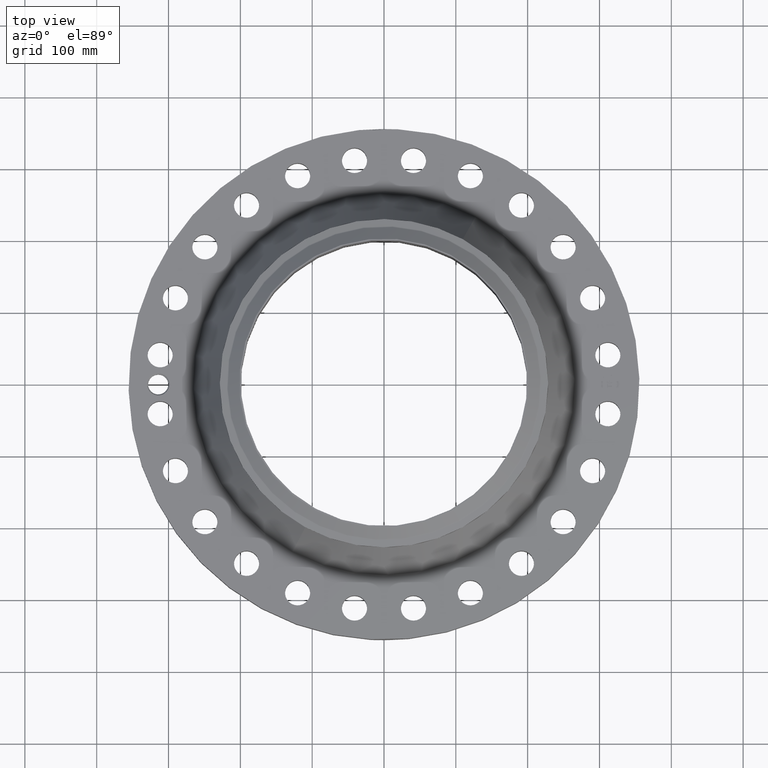
[diagram: clean part render]
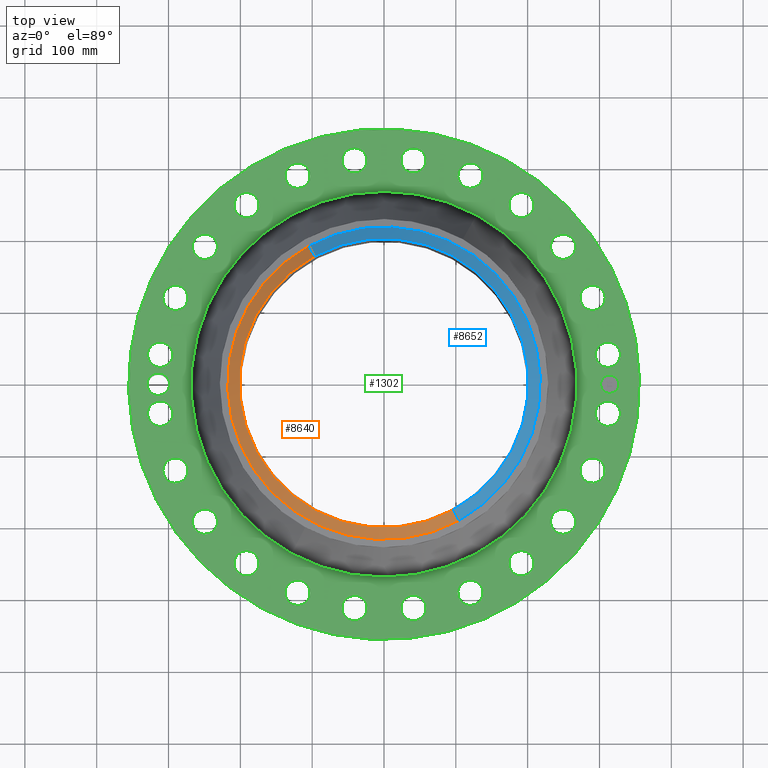
[diagram: same view with three faces highlighted in distinct colors, each labeled with its STEP entity id]
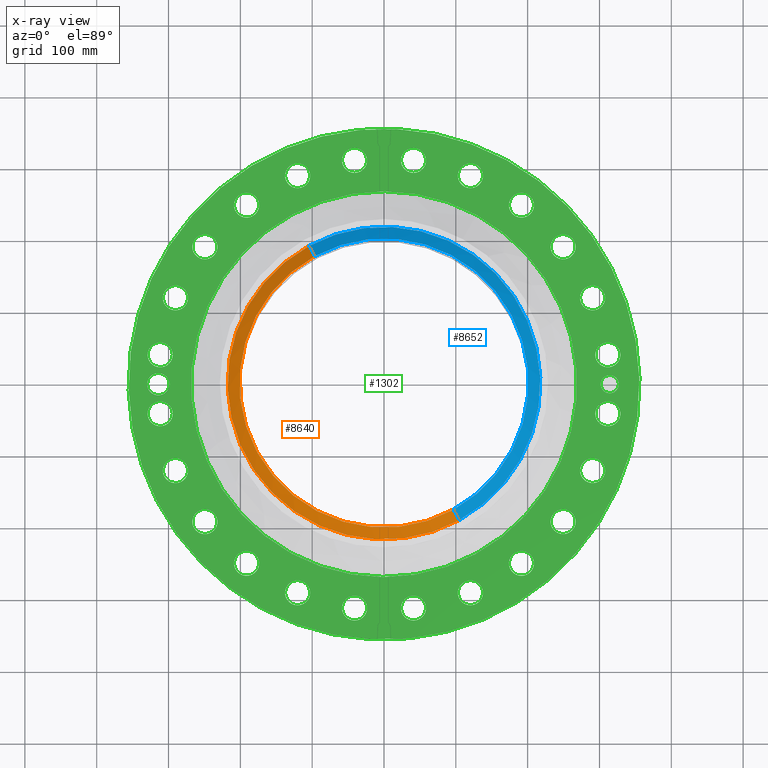
[diagram: x-ray of the same camera — body ghosted, the three highlighted faces saturated]
A machine part, top view with three faces highlighted in distinct colors.
The next image is the same camera in x-ray (body ghosted, the three faces saturated) — at least one of them is partly hidden behind the body in this view.
Their STEP definitions:

[orange] entity #8640 — the highlighted conical surface has half-angle 52.5 deg.
#5086=AXIS2_PLACEMENT_3D('Circle Axis2P3D',#5084,#5085,$) ;
#8613=AXIS2_PLACEMENT_3D('Cone Axis2P3D',#8610,#8611,#8612) ;
#8624=AXIS2_PLACEMENT_3D('Circle Axis2P3D',#8622,#8623,$) ;
#5079=CARTESIAN_POINT('Vertex',(3.79836396724,-6.95285860462,6.31000000003)) ;
#5081=CARTESIAN_POINT('Vertex',(-3.79836396724,6.95285860462,6.31000000003)) ;
#5084=CARTESIAN_POINT('Axis2P3D Location',(0.,0.,6.31000000003)) ;
#8610=CARTESIAN_POINT('Axis2P3D Location',(0.,0.,6.31000000003)) ;
#8615=CARTESIAN_POINT('Line Origine',(-3.95330526979,7.23647675652,6.06201437259)) ;
#8619=CARTESIAN_POINT('Vertex',(-4.10824657234,7.52009490843,5.81402874515)) ;
#8622=CARTESIAN_POINT('Axis2P3D Location',(0.,0.,5.81402874515)) ;
#8626=CARTESIAN_POINT('Vertex',(4.10824657234,-7.52009490843,5.81402874515)) ;
#8629=CARTESIAN_POINT('Line Origine',(3.95330526979,-7.23647675652,6.06201437259)) ;
#5085=DIRECTION('Axis2P3D Direction',(0.,0.,-0.0393700787402)) ;
#8611=DIRECTION('Axis2P3D Direction',(-0.,-0.,-0.0393700787402)) ;
#8612=DIRECTION('Axis2P3D XDirection',(-0.0188750212049,0.0345504945626,0.)) ;
#8616=DIRECTION('Vector Direction',(-0.014974561121,0.02741075027,-0.023966985394)) ;
#8623=DIRECTION('Axis2P3D Direction',(0.,0.,-0.0393700787402)) ;
#8630=DIRECTION('Vector Direction',(0.014974561121,-0.02741075027,-0.023966985394)) ;
#8617=VECTOR('Line Direction',#8616,0.0393700787402) ;
#8631=VECTOR('Line Direction',#8630,0.0393700787402) ;
#8635=ORIENTED_EDGE('',*,*,#5088,.F.) ;
#8636=ORIENTED_EDGE('',*,*,#8621,.T.) ;
#8637=ORIENTED_EDGE('',*,*,#8628,.T.) ;
#8638=ORIENTED_EDGE('',*,*,#8633,.F.) ;
#8640=ADVANCED_FACE('PartBody',(#8639),#8614,.T.) ;
#5087=CIRCLE('generated circle',#5086,7.92274015751) ;
#8625=CIRCLE('generated circle',#8624,8.56910248106) ;
#8614=CONICAL_SURFACE('Cone',#8613,7.92274015751,0.916297857297) ;
#5088=EDGE_CURVE('',#5082,#5080,#5087,.F.) ;
#8621=EDGE_CURVE('',#5082,#8620,#8618,.T.) ;
#8628=EDGE_CURVE('',#8620,#8627,#8625,.F.) ;
#8633=EDGE_CURVE('',#5080,#8627,#8632,.T.) ;
#8634=EDGE_LOOP('',(#8635,#8636,#8637,#8638)) ;
#8639=FACE_OUTER_BOUND('',#8634,.T.) ;
#8618=LINE('Line',#8615,#8617) ;
#8632=LINE('Line',#8629,#8631) ;
#5080=VERTEX_POINT('',#5079) ;
#5082=VERTEX_POINT('',#5081) ;
#8620=VERTEX_POINT('',#8619) ;
#8627=VERTEX_POINT('',#8626) ;

[blue] entity #8652 — the highlighted conical surface has half-angle 52.5 deg.
#5077=AXIS2_PLACEMENT_3D('Circle Axis2P3D',#5075,#5076,$) ;
#8613=AXIS2_PLACEMENT_3D('Cone Axis2P3D',#8610,#8611,#8612) ;
#8643=AXIS2_PLACEMENT_3D('Circle Axis2P3D',#8641,#8642,$) ;
#5075=CARTESIAN_POINT('Axis2P3D Location',(0.,0.,6.31000000003)) ;
#5079=CARTESIAN_POINT('Vertex',(3.79836396724,-6.95285860462,6.31000000003)) ;
#5081=CARTESIAN_POINT('Vertex',(-3.79836396724,6.95285860462,6.31000000003)) ;
#8610=CARTESIAN_POINT('Axis2P3D Location',(0.,0.,6.31000000003)) ;
#8615=CARTESIAN_POINT('Line Origine',(-3.95330526979,7.23647675652,6.06201437259)) ;
#8619=CARTESIAN_POINT('Vertex',(-4.10824657234,7.52009490843,5.81402874515)) ;
#8626=CARTESIAN_POINT('Vertex',(4.10824657234,-7.52009490843,5.81402874515)) ;
#8629=CARTESIAN_POINT('Line Origine',(3.95330526979,-7.23647675652,6.06201437259)) ;
#8641=CARTESIAN_POINT('Axis2P3D Location',(0.,0.,5.81402874515)) ;
#5076=DIRECTION('Axis2P3D Direction',(0.,0.,-0.0393700787402)) ;
#8611=DIRECTION('Axis2P3D Direction',(-0.,-0.,-0.0393700787402)) ;
#8612=DIRECTION('Axis2P3D XDirection',(-0.0188750212049,0.0345504945626,0.)) ;
#8616=DIRECTION('Vector Direction',(-0.014974561121,0.02741075027,-0.023966985394)) ;
#8630=DIRECTION('Vector Direction',(0.014974561121,-0.02741075027,-0.023966985394)) ;
#8642=DIRECTION('Axis2P3D Direction',(0.,0.,-0.0393700787402)) ;
#8617=VECTOR('Line Direction',#8616,0.0393700787402) ;
#8631=VECTOR('Line Direction',#8630,0.0393700787402) ;
#8647=ORIENTED_EDGE('',*,*,#5083,.F.) ;
#8648=ORIENTED_EDGE('',*,*,#8633,.T.) ;
#8649=ORIENTED_EDGE('',*,*,#8645,.T.) ;
#8650=ORIENTED_EDGE('',*,*,#8621,.F.) ;
#8652=ADVANCED_FACE('PartBody',(#8651),#8614,.T.) ;
#5078=CIRCLE('generated circle',#5077,7.92274015751) ;
#8644=CIRCLE('generated circle',#8643,8.56910248106) ;
#8614=CONICAL_SURFACE('Cone',#8613,7.92274015751,0.916297857297) ;
#5083=EDGE_CURVE('',#5080,#5082,#5078,.F.) ;
#8621=EDGE_CURVE('',#5082,#8620,#8618,.T.) ;
#8633=EDGE_CURVE('',#5080,#8627,#8632,.T.) ;
#8645=EDGE_CURVE('',#8627,#8620,#8644,.F.) ;
#8646=EDGE_LOOP('',(#8647,#8648,#8649,#8650)) ;
#8651=FACE_OUTER_BOUND('',#8646,.T.) ;
#8618=LINE('Line',#8615,#8617) ;
#8632=LINE('Line',#8629,#8631) ;
#5080=VERTEX_POINT('',#5079) ;
#5082=VERTEX_POINT('',#5081) ;
#8620=VERTEX_POINT('',#8619) ;
#8627=VERTEX_POINT('',#8626) ;

[green] entity #1302 — the highlighted planar face has unit normal (0, 0, -1).
#58=AXIS2_PLACEMENT_3D('Circle Axis2P3D',#56,#57,$) ;
#677=AXIS2_PLACEMENT_3D('Circle Axis2P3D',#675,#676,$) ;
#777=AXIS2_PLACEMENT_3D('Plane Axis2P3D',#774,#775,#776) ;
#810=AXIS2_PLACEMENT_3D('Circle Axis2P3D',#808,#809,$) ;
#817=AXIS2_PLACEMENT_3D('Circle Axis2P3D',#815,#816,$) ;
#824=AXIS2_PLACEMENT_3D('Circle Axis2P3D',#822,#823,$) ;
#836=AXIS2_PLACEMENT_3D('Circle Axis2P3D',#834,#835,$) ;
#845=AXIS2_PLACEMENT_3D('Circle Axis2P3D',#843,#844,$) ;
#854=AXIS2_PLACEMENT_3D('Circle Axis2P3D',#852,#853,$) ;
#863=AXIS2_PLACEMENT_3D('Circle Axis2P3D',#861,#862,$) ;
#872=AXIS2_PLACEMENT_3D('Circle Axis2P3D',#870,#871,$) ;
#881=AXIS2_PLACEMENT_3D('Circle Axis2P3D',#879,#880,$) ;
#890=AXIS2_PLACEMENT_3D('Circle Axis2P3D',#888,#889,$) ;
#899=AXIS2_PLACEMENT_3D('Circle Axis2P3D',#897,#898,$) ;
#908=AXIS2_PLACEMENT_3D('Circle Axis2P3D',#906,#907,$) ;
#917=AXIS2_PLACEMENT_3D('Circle Axis2P3D',#915,#916,$) ;
#926=AXIS2_PLACEMENT_3D('Circle Axis2P3D',#924,#925,$) ;
#935=AXIS2_PLACEMENT_3D('Circle Axis2P3D',#933,#934,$) ;
#944=AXIS2_PLACEMENT_3D('Circle Axis2P3D',#942,#943,$) ;
#953=AXIS2_PLACEMENT_3D('Circle Axis2P3D',#951,#952,$) ;
#962=AXIS2_PLACEMENT_3D('Circle Axis2P3D',#960,#961,$) ;
#971=AXIS2_PLACEMENT_3D('Circle Axis2P3D',#969,#970,$) ;
#980=AXIS2_PLACEMENT_3D('Circle Axis2P3D',#978,#979,$) ;
#989=AXIS2_PLACEMENT_3D('Circle Axis2P3D',#987,#988,$) ;
#998=AXIS2_PLACEMENT_3D('Circle Axis2P3D',#996,#997,$) ;
#1007=AXIS2_PLACEMENT_3D('Circle Axis2P3D',#1005,#1006,$) ;
#1016=AXIS2_PLACEMENT_3D('Circle Axis2P3D',#1014,#1015,$) ;
#1025=AXIS2_PLACEMENT_3D('Circle Axis2P3D',#1023,#1024,$) ;
#1034=AXIS2_PLACEMENT_3D('Circle Axis2P3D',#1032,#1033,$) ;
#1043=AXIS2_PLACEMENT_3D('Circle Axis2P3D',#1041,#1042,$) ;
#1052=AXIS2_PLACEMENT_3D('Circle Axis2P3D',#1050,#1051,$) ;
#1061=AXIS2_PLACEMENT_3D('Circle Axis2P3D',#1059,#1060,$) ;
#1070=AXIS2_PLACEMENT_3D('Circle Axis2P3D',#1068,#1069,$) ;
#1079=AXIS2_PLACEMENT_3D('Circle Axis2P3D',#1077,#1078,$) ;
#1088=AXIS2_PLACEMENT_3D('Circle Axis2P3D',#1086,#1087,$) ;
#1097=AXIS2_PLACEMENT_3D('Circle Axis2P3D',#1095,#1096,$) ;
#1106=AXIS2_PLACEMENT_3D('Circle Axis2P3D',#1104,#1105,$) ;
#1115=AXIS2_PLACEMENT_3D('Circle Axis2P3D',#1113,#1114,$) ;
#1124=AXIS2_PLACEMENT_3D('Circle Axis2P3D',#1122,#1123,$) ;
#1133=AXIS2_PLACEMENT_3D('Circle Axis2P3D',#1131,#1132,$) ;
#1142=AXIS2_PLACEMENT_3D('Circle Axis2P3D',#1140,#1141,$) ;
#1151=AXIS2_PLACEMENT_3D('Circle Axis2P3D',#1149,#1150,$) ;
#1160=AXIS2_PLACEMENT_3D('Circle Axis2P3D',#1158,#1159,$) ;
#1169=AXIS2_PLACEMENT_3D('Circle Axis2P3D',#1167,#1168,$) ;
#1178=AXIS2_PLACEMENT_3D('Circle Axis2P3D',#1176,#1177,$) ;
#1187=AXIS2_PLACEMENT_3D('Circle Axis2P3D',#1185,#1186,$) ;
#1196=AXIS2_PLACEMENT_3D('Circle Axis2P3D',#1194,#1195,$) ;
#1205=AXIS2_PLACEMENT_3D('Circle Axis2P3D',#1203,#1204,$) ;
#1214=AXIS2_PLACEMENT_3D('Circle Axis2P3D',#1212,#1213,$) ;
#1223=AXIS2_PLACEMENT_3D('Circle Axis2P3D',#1221,#1222,$) ;
#1232=AXIS2_PLACEMENT_3D('Circle Axis2P3D',#1230,#1231,$) ;
#1241=AXIS2_PLACEMENT_3D('Circle Axis2P3D',#1239,#1240,$) ;
#1250=AXIS2_PLACEMENT_3D('Circle Axis2P3D',#1248,#1249,$) ;
#1259=AXIS2_PLACEMENT_3D('Circle Axis2P3D',#1257,#1258,$) ;
#1268=AXIS2_PLACEMENT_3D('Circle Axis2P3D',#1266,#1267,$) ;
#1277=AXIS2_PLACEMENT_3D('Circle Axis2P3D',#1275,#1276,$) ;
#1286=AXIS2_PLACEMENT_3D('Circle Axis2P3D',#1284,#1285,$) ;
#1295=AXIS2_PLACEMENT_3D('Circle Axis2P3D',#1293,#1294,$) ;
#53=CARTESIAN_POINT('Vertex',(-6.71195754049,-12.2861558665,2.44000000001)) ;
#56=CARTESIAN_POINT('Axis2P3D Location',(0.,0.,2.44000000001)) ;
#60=CARTESIAN_POINT('Vertex',(6.71195754049,12.2861558665,2.44000000001)) ;
#675=CARTESIAN_POINT('Axis2P3D Location',(0.,0.,2.44000000001)) ;
#774=CARTESIAN_POINT('Axis2P3D Location',(0.,14.0000000001,2.44000000001)) ;
#784=CARTESIAN_POINT('Control Point',(-11.75,2.23792987641E-015,2.44000000001)) ;
#785=CARTESIAN_POINT('Control Point',(-11.7520534045,0.0564977761562,2.44000000001)) ;
#786=CARTESIAN_POINT('Control Point',(-11.7604952312,0.112654225136,2.44000000001)) ;
#787=CARTESIAN_POINT('Control Point',(-11.7752771597,0.167499218118,2.44000000001)) ;
#788=CARTESIAN_POINT('Control Point',(-11.7961201002,0.220072139292,2.44000000001)) ;
#789=CARTESIAN_POINT('Control Point',(-11.822551499,0.269526343495,2.44000000001)) ;
#790=CARTESIAN_POINT('Vertex',(-11.75,2.23792987641E-015,2.44000000001)) ;
#792=CARTESIAN_POINT('Vertex',(-11.822551499,0.269526343495,2.44000000001)) ;
#796=CARTESIAN_POINT('Control Point',(-11.75,0.,2.44000000001)) ;
#797=CARTESIAN_POINT('Control Point',(-11.7518633164,-0.0512676551522,2.44000000001)) ;
#798=CARTESIAN_POINT('Control Point',(-11.7589870116,-0.102254253049,2.44000000001)) ;
#799=CARTESIAN_POINT('Control Point',(-11.7713262717,-0.152216948437,2.44000000001)) ;
#800=CARTESIAN_POINT('Control Point',(-11.7904956836,-0.205462779156,2.44000000001)) ;
#801=CARTESIAN_POINT('Control Point',(-11.8153820538,-0.255801522731,2.44000000001)) ;
#802=CARTESIAN_POINT('Control Point',(-11.817780944,-0.260525033871,2.44000000001)) ;
#803=CARTESIAN_POINT('Control Point',(-11.820229979,-0.265221215847,2.44000000001)) ;
#804=CARTESIAN_POINT('Control Point',(-11.8227287537,-0.269889359894,2.44000000001)) ;
#805=CARTESIAN_POINT('Vertex',(-11.8227287537,-0.269889359894,2.44000000001)) ;
#808=CARTESIAN_POINT('Axis2P3D Location',(-12.375,1.1189649382E-014,2.44000000001)) ;
#812=CARTESIAN_POINT('Vertex',(-11.8355587751,-0.294698084326,2.44000000001)) ;
#815=CARTESIAN_POINT('Axis2P3D Location',(-12.375,1.1189649382E-014,2.44000000001)) ;
#819=CARTESIAN_POINT('Vertex',(-12.914441225,0.294698084326,2.44000000001)) ;
#822=CARTESIAN_POINT('Axis2P3D Location',(-12.375,1.1189649382E-014,2.44000000001)) ;
#834=CARTESIAN_POINT('Axis2P3D Location',(12.2691301595,-1.61526162873,2.44000000001)) ;
#838=CARTESIAN_POINT('Vertex',(11.6635981918,-1.28445800709,2.44000000001)) ;
#840=CARTESIAN_POINT('Vertex',(12.8746621273,-1.94606525037,2.44000000001)) ;
#843=CARTESIAN_POINT('Axis2P3D Location',(12.2691301595,-1.61526162873,2.44000000001)) ;
#852=CARTESIAN_POINT('Axis2P3D Location',(0.,0.,2.44000000001)) ;
#856=CARTESIAN_POINT('Vertex',(-5.0697774453,-9.28016536543,2.44000000001)) ;
#858=CARTESIAN_POINT('Vertex',(5.0697774453,9.28016536543,2.44000000001)) ;
#861=CARTESIAN_POINT('Axis2P3D Location',(0.,0.,2.44000000001)) ;
#870=CARTESIAN_POINT('Axis2P3D Location',(11.4330092149,-4.73570747554,2.44000000001)) ;
#874=CARTESIAN_POINT('Vertex',(11.9322899037,-5.21196244277,2.44000000001)) ;
#876=CARTESIAN_POINT('Vertex',(10.9337285261,-4.25945250831,2.44000000001)) ;
#879=CARTESIAN_POINT('Axis2P3D Location',(11.4330092149,-4.73570747554,2.44000000001)) ;
#888=CARTESIAN_POINT('Axis2P3D Location',(9.81774758614,-7.53342268401,2.44000000001)) ;
#892=CARTESIAN_POINT('Vertex',(10.1767518422,-8.12267300787,2.44000000001)) ;
#894=CARTESIAN_POINT('Vertex',(9.45874333012,-6.94417236016,2.44000000001)) ;
#897=CARTESIAN_POINT('Axis2P3D Location',(9.81774758614,-7.53342268401,2.44000000001)) ;
#906=CARTESIAN_POINT('Axis2P3D Location',(7.53342268401,-9.81774758614,2.44000000001)) ;
#910=CARTESIAN_POINT('Vertex',(7.7276849605,-10.4798368308,2.44000000001)) ;
#912=CARTESIAN_POINT('Vertex',(7.33916040752,-9.15565834145,2.44000000001)) ;
#915=CARTESIAN_POINT('Axis2P3D Location',(7.53342268401,-9.81774758614,2.44000000001)) ;
#924=CARTESIAN_POINT('Axis2P3D Location',(4.73570747554,-11.4330092149,2.44000000001)) ;
#928=CARTESIAN_POINT('Vertex',(4.75198911939,-12.1228170925,2.44000000001)) ;
#930=CARTESIAN_POINT('Vertex',(4.71942583169,-10.7432013372,2.44000000001)) ;
#933=CARTESIAN_POINT('Axis2P3D Location',(4.73570747554,-11.4330092149,2.44000000001)) ;
#942=CARTESIAN_POINT('Axis2P3D Location',(1.61526162873,-12.2691301595,2.44000000001)) ;
#946=CARTESIAN_POINT('Vertex',(1.45245307282,-12.9396474033,2.44000000001)) ;
#948=CARTESIAN_POINT('Vertex',(1.77807018464,-11.5986129158,2.44000000001)) ;
#951=CARTESIAN_POINT('Axis2P3D Location',(1.61526162873,-12.2691301595,2.44000000001)) ;
#960=CARTESIAN_POINT('Axis2P3D Location',(-1.61526162873,-12.2691301595,2.44000000001)) ;
#964=CARTESIAN_POINT('Vertex',(-1.94606525037,-12.8746621273,2.44000000001)) ;
#966=CARTESIAN_POINT('Vertex',(-1.28445800709,-11.6635981918,2.44000000001)) ;
#969=CARTESIAN_POINT('Axis2P3D Location',(-1.61526162873,-12.2691301595,2.44000000001)) ;
#978=CARTESIAN_POINT('Axis2P3D Location',(-4.73570747554,-11.4330092149,2.44000000001)) ;
#982=CARTESIAN_POINT('Vertex',(-5.21196244277,-11.9322899037,2.44000000001)) ;
#984=CARTESIAN_POINT('Vertex',(-4.25945250831,-10.9337285261,2.44000000001)) ;
#987=CARTESIAN_POINT('Axis2P3D Location',(-4.73570747554,-11.4330092149,2.44000000001)) ;
#996=CARTESIAN_POINT('Axis2P3D Location',(-7.53342268401,-9.81774758614,2.44000000001)) ;
#1000=CARTESIAN_POINT('Vertex',(-8.12267300787,-10.1767518422,2.44000000001)) ;
#1002=CARTESIAN_POINT('Vertex',(-6.94417236016,-9.45874333012,2.44000000001)) ;
#1005=CARTESIAN_POINT('Axis2P3D Location',(-7.53342268401,-9.81774758614,2.44000000001)) ;
#1014=CARTESIAN_POINT('Axis2P3D Location',(-9.81774758614,-7.53342268401,2.44000000001)) ;
#1018=CARTESIAN_POINT('Vertex',(-10.4798368308,-7.7276849605,2.44000000001)) ;
#1020=CARTESIAN_POINT('Vertex',(-9.15565834145,-7.33916040752,2.44000000001)) ;
#1023=CARTESIAN_POINT('Axis2P3D Location',(-9.81774758614,-7.53342268401,2.44000000001)) ;
#1032=CARTESIAN_POINT('Axis2P3D Location',(-11.4330092149,-4.73570747554,2.44000000001)) ;
#1036=CARTESIAN_POINT('Vertex',(-12.1228170925,-4.75198911939,2.44000000001)) ;
#1038=CARTESIAN_POINT('Vertex',(-10.7432013372,-4.71942583169,2.44000000001)) ;
#1041=CARTESIAN_POINT('Axis2P3D Location',(-11.4330092149,-4.73570747554,2.44000000001)) ;
#1050=CARTESIAN_POINT('Axis2P3D Location',(-12.2691301595,-1.61526162873,2.44000000001)) ;
#1054=CARTESIAN_POINT('Vertex',(-12.9396474033,-1.45245307282,2.44000000001)) ;
#1056=CARTESIAN_POINT('Vertex',(-11.5986129158,-1.77807018464,2.44000000001)) ;
#1059=CARTESIAN_POINT('Axis2P3D Location',(-12.2691301595,-1.61526162873,2.44000000001)) ;
#1068=CARTESIAN_POINT('Axis2P3D Location',(-12.2691301595,1.61526162873,2.44000000001)) ;
#1072=CARTESIAN_POINT('Vertex',(-12.8746621273,1.94606525037,2.44000000001)) ;
#1074=CARTESIAN_POINT('Vertex',(-11.6635981918,1.28445800709,2.44000000001)) ;
#1077=CARTESIAN_POINT('Axis2P3D Location',(-12.2691301595,1.61526162873,2.44000000001)) ;
#1086=CARTESIAN_POINT('Axis2P3D Location',(-11.4330092149,4.73570747554,2.44000000001)) ;
#1090=CARTESIAN_POINT('Vertex',(-11.9322899037,5.21196244277,2.44000000001)) ;
#1092=CARTESIAN_POINT('Vertex',(-10.9337285261,4.25945250831,2.44000000001)) ;
#1095=CARTESIAN_POINT('Axis2P3D Location',(-11.4330092149,4.73570747554,2.44000000001)) ;
#1104=CARTESIAN_POINT('Axis2P3D Location',(-9.81774758614,7.53342268401,2.44000000001)) ;
#1108=CARTESIAN_POINT('Vertex',(-10.1767518422,8.12267300787,2.44000000001)) ;
#1110=CARTESIAN_POINT('Vertex',(-9.45874333012,6.94417236016,2.44000000001)) ;
#1113=CARTESIAN_POINT('Axis2P3D Location',(-9.81774758614,7.53342268401,2.44000000001)) ;
#1122=CARTESIAN_POINT('Axis2P3D Location',(-7.53342268401,9.81774758614,2.44000000001)) ;
#1126=CARTESIAN_POINT('Vertex',(-7.7276849605,10.4798368308,2.44000000001)) ;
#1128=CARTESIAN_POINT('Vertex',(-7.33916040752,9.15565834145,2.44000000001)) ;
#1131=CARTESIAN_POINT('Axis2P3D Location',(-7.53342268401,9.81774758614,2.44000000001)) ;
#1140=CARTESIAN_POINT('Axis2P3D Location',(-4.73570747554,11.4330092149,2.44000000001)) ;
#1144=CARTESIAN_POINT('Vertex',(-4.75198911939,12.1228170925,2.44000000001)) ;
#1146=CARTESIAN_POINT('Vertex',(-4.71942583169,10.7432013372,2.44000000001)) ;
#1149=CARTESIAN_POINT('Axis2P3D Location',(-4.73570747554,11.4330092149,2.44000000001)) ;
#1158=CARTESIAN_POINT('Axis2P3D Location',(-1.61526162873,12.2691301595,2.44000000001)) ;
#1162=CARTESIAN_POINT('Vertex',(-1.45245307282,12.9396474033,2.44000000001)) ;
#1164=CARTESIAN_POINT('Vertex',(-1.77807018464,11.5986129158,2.44000000001)) ;
#1167=CARTESIAN_POINT('Axis2P3D Location',(-1.61526162873,12.2691301595,2.44000000001)) ;
#1176=CARTESIAN_POINT('Axis2P3D Location',(1.61526162873,12.2691301595,2.44000000001)) ;
#1180=CARTESIAN_POINT('Vertex',(1.94606525037,12.8746621273,2.44000000001)) ;
#1182=CARTESIAN_POINT('Vertex',(1.28445800709,11.6635981918,2.44000000001)) ;
#1185=CARTESIAN_POINT('Axis2P3D Location',(1.61526162873,12.2691301595,2.44000000001)) ;
#1194=CARTESIAN_POINT('Axis2P3D Location',(4.73570747554,11.4330092149,2.44000000001)) ;
#1198=CARTESIAN_POINT('Vertex',(5.21196244277,11.9322899037,2.44000000001)) ;
#1200=CARTESIAN_POINT('Vertex',(4.25945250831,10.9337285261,2.44000000001)) ;
#1203=CARTESIAN_POINT('Axis2P3D Location',(4.73570747554,11.4330092149,2.44000000001)) ;
#1212=CARTESIAN_POINT('Axis2P3D Location',(7.53342268401,9.81774758614,2.44000000001)) ;
#1216=CARTESIAN_POINT('Vertex',(8.12267300787,10.1767518422,2.44000000001)) ;
#1218=CARTESIAN_POINT('Vertex',(6.94417236016,9.45874333012,2.44000000001)) ;
#1221=CARTESIAN_POINT('Axis2P3D Location',(7.53342268401,9.81774758614,2.44000000001)) ;
#1230=CARTESIAN_POINT('Axis2P3D Location',(9.81774758614,7.53342268401,2.44000000001)) ;
#1234=CARTESIAN_POINT('Vertex',(10.4798368308,7.7276849605,2.44000000001)) ;
#1236=CARTESIAN_POINT('Vertex',(9.15565834145,7.33916040752,2.44000000001)) ;
#1239=CARTESIAN_POINT('Axis2P3D Location',(9.81774758614,7.53342268401,2.44000000001)) ;
#1248=CARTESIAN_POINT('Axis2P3D Location',(11.4330092149,4.73570747554,2.44000000001)) ;
#1252=CARTESIAN_POINT('Vertex',(12.1228170925,4.75198911939,2.44000000001)) ;
#1254=CARTESIAN_POINT('Vertex',(10.7432013372,4.71942583169,2.44000000001)) ;
#1257=CARTESIAN_POINT('Axis2P3D Location',(11.4330092149,4.73570747554,2.44000000001)) ;
#1266=CARTESIAN_POINT('Axis2P3D Location',(12.2691301595,1.61526162873,2.44000000001)) ;
#1270=CARTESIAN_POINT('Vertex',(12.9396474033,1.45245307282,2.44000000001)) ;
#1272=CARTESIAN_POINT('Vertex',(11.5986129158,1.77807018464,2.44000000001)) ;
#1275=CARTESIAN_POINT('Axis2P3D Location',(12.2691301595,1.61526162873,2.44000000001)) ;
#1284=CARTESIAN_POINT('Axis2P3D Location',(12.375,0.,2.44000000001)) ;
#1288=CARTESIAN_POINT('Vertex',(12.375,0.499999995002,2.44000000001)) ;
#1290=CARTESIAN_POINT('Vertex',(12.375,-0.499999995002,2.44000000001)) ;
#1293=CARTESIAN_POINT('Axis2P3D Location',(12.375,0.,2.44000000001)) ;
#57=DIRECTION('Axis2P3D Direction',(0.,0.,-0.0393700787402)) ;
#676=DIRECTION('Axis2P3D Direction',(0.,0.,-0.0393700787402)) ;
#775=DIRECTION('Axis2P3D Direction',(0.,0.,-0.0393700787402)) ;
#776=DIRECTION('Axis2P3D XDirection',(0.0393700787402,0.,0.)) ;
#809=DIRECTION('Axis2P3D Direction',(0.,0.,-0.0393700787402)) ;
#816=DIRECTION('Axis2P3D Direction',(0.,0.,-0.0393700787402)) ;
#823=DIRECTION('Axis2P3D Direction',(0.,0.,-0.0393700787402)) ;
#835=DIRECTION('Axis2P3D Direction',(0.,0.,-0.0393700787402)) ;
#844=DIRECTION('Axis2P3D Direction',(0.,0.,-0.0393700787402)) ;
#853=DIRECTION('Axis2P3D Direction',(0.,0.,-0.0393700787402)) ;
#862=DIRECTION('Axis2P3D Direction',(0.,0.,-0.0393700787402)) ;
#871=DIRECTION('Axis2P3D Direction',(0.,0.,-0.0393700787402)) ;
#880=DIRECTION('Axis2P3D Direction',(0.,0.,-0.0393700787402)) ;
#889=DIRECTION('Axis2P3D Direction',(0.,0.,-0.0393700787402)) ;
#898=DIRECTION('Axis2P3D Direction',(0.,0.,-0.0393700787402)) ;
#907=DIRECTION('Axis2P3D Direction',(0.,0.,-0.0393700787402)) ;
#916=DIRECTION('Axis2P3D Direction',(0.,0.,-0.0393700787402)) ;
#925=DIRECTION('Axis2P3D Direction',(0.,0.,-0.0393700787402)) ;
#934=DIRECTION('Axis2P3D Direction',(0.,0.,-0.0393700787402)) ;
#943=DIRECTION('Axis2P3D Direction',(0.,0.,-0.0393700787402)) ;
#952=DIRECTION('Axis2P3D Direction',(0.,0.,-0.0393700787402)) ;
#961=DIRECTION('Axis2P3D Direction',(0.,0.,-0.0393700787402)) ;
#970=DIRECTION('Axis2P3D Direction',(0.,0.,-0.0393700787402)) ;
#979=DIRECTION('Axis2P3D Direction',(0.,0.,-0.0393700787402)) ;
#988=DIRECTION('Axis2P3D Direction',(0.,0.,-0.0393700787402)) ;
#997=DIRECTION('Axis2P3D Direction',(0.,0.,-0.0393700787402)) ;
#1006=DIRECTION('Axis2P3D Direction',(0.,0.,-0.0393700787402)) ;
#1015=DIRECTION('Axis2P3D Direction',(0.,0.,-0.0393700787402)) ;
#1024=DIRECTION('Axis2P3D Direction',(0.,0.,-0.0393700787402)) ;
#1033=DIRECTION('Axis2P3D Direction',(0.,0.,-0.0393700787402)) ;
#1042=DIRECTION('Axis2P3D Direction',(0.,0.,-0.0393700787402)) ;
#1051=DIRECTION('Axis2P3D Direction',(0.,0.,-0.0393700787402)) ;
#1060=DIRECTION('Axis2P3D Direction',(0.,0.,-0.0393700787402)) ;
#1069=DIRECTION('Axis2P3D Direction',(0.,0.,-0.0393700787402)) ;
#1078=DIRECTION('Axis2P3D Direction',(0.,0.,-0.0393700787402)) ;
#1087=DIRECTION('Axis2P3D Direction',(0.,0.,-0.0393700787402)) ;
#1096=DIRECTION('Axis2P3D Direction',(0.,0.,-0.0393700787402)) ;
#1105=DIRECTION('Axis2P3D Direction',(0.,0.,-0.0393700787402)) ;
#1114=DIRECTION('Axis2P3D Direction',(0.,0.,-0.0393700787402)) ;
#1123=DIRECTION('Axis2P3D Direction',(0.,0.,-0.0393700787402)) ;
#1132=DIRECTION('Axis2P3D Direction',(0.,0.,-0.0393700787402)) ;
#1141=DIRECTION('Axis2P3D Direction',(0.,0.,-0.0393700787402)) ;
#1150=DIRECTION('Axis2P3D Direction',(0.,0.,-0.0393700787402)) ;
#1159=DIRECTION('Axis2P3D Direction',(0.,0.,-0.0393700787402)) ;
#1168=DIRECTION('Axis2P3D Direction',(0.,0.,-0.0393700787402)) ;
#1177=DIRECTION('Axis2P3D Direction',(0.,0.,-0.0393700787402)) ;
#1186=DIRECTION('Axis2P3D Direction',(0.,0.,-0.0393700787402)) ;
#1195=DIRECTION('Axis2P3D Direction',(0.,0.,-0.0393700787402)) ;
#1204=DIRECTION('Axis2P3D Direction',(0.,0.,-0.0393700787402)) ;
#1213=DIRECTION('Axis2P3D Direction',(0.,0.,-0.0393700787402)) ;
#1222=DIRECTION('Axis2P3D Direction',(0.,0.,-0.0393700787402)) ;
#1231=DIRECTION('Axis2P3D Direction',(0.,0.,-0.0393700787402)) ;
#1240=DIRECTION('Axis2P3D Direction',(0.,0.,-0.0393700787402)) ;
#1249=DIRECTION('Axis2P3D Direction',(0.,0.,-0.0393700787402)) ;
#1258=DIRECTION('Axis2P3D Direction',(0.,0.,-0.0393700787402)) ;
#1267=DIRECTION('Axis2P3D Direction',(0.,0.,-0.0393700787402)) ;
#1276=DIRECTION('Axis2P3D Direction',(0.,0.,-0.0393700787402)) ;
#1285=DIRECTION('Axis2P3D Direction',(0.,0.,-0.0393700787402)) ;
#1294=DIRECTION('Axis2P3D Direction',(0.,0.,-0.0393700787402)) ;
#780=ORIENTED_EDGE('',*,*,#679,.F.) ;
#781=ORIENTED_EDGE('',*,*,#62,.F.) ;
#828=ORIENTED_EDGE('',*,*,#794,.F.) ;
#829=ORIENTED_EDGE('',*,*,#807,.T.) ;
#830=ORIENTED_EDGE('',*,*,#814,.T.) ;
#831=ORIENTED_EDGE('',*,*,#821,.T.) ;
#832=ORIENTED_EDGE('',*,*,#826,.T.) ;
#849=ORIENTED_EDGE('',*,*,#842,.T.) ;
#850=ORIENTED_EDGE('',*,*,#847,.T.) ;
#867=ORIENTED_EDGE('',*,*,#860,.T.) ;
#868=ORIENTED_EDGE('',*,*,#865,.T.) ;
#885=ORIENTED_EDGE('',*,*,#878,.T.) ;
#886=ORIENTED_EDGE('',*,*,#883,.T.) ;
#903=ORIENTED_EDGE('',*,*,#896,.T.) ;
#904=ORIENTED_EDGE('',*,*,#901,.T.) ;
#921=ORIENTED_EDGE('',*,*,#914,.T.) ;
#922=ORIENTED_EDGE('',*,*,#919,.T.) ;
#939=ORIENTED_EDGE('',*,*,#932,.T.) ;
#940=ORIENTED_EDGE('',*,*,#937,.T.) ;
#957=ORIENTED_EDGE('',*,*,#950,.T.) ;
#958=ORIENTED_EDGE('',*,*,#955,.T.) ;
#975=ORIENTED_EDGE('',*,*,#968,.T.) ;
#976=ORIENTED_EDGE('',*,*,#973,.T.) ;
#993=ORIENTED_EDGE('',*,*,#986,.T.) ;
#994=ORIENTED_EDGE('',*,*,#991,.T.) ;
#1011=ORIENTED_EDGE('',*,*,#1004,.T.) ;
#1012=ORIENTED_EDGE('',*,*,#1009,.T.) ;
#1029=ORIENTED_EDGE('',*,*,#1022,.T.) ;
#1030=ORIENTED_EDGE('',*,*,#1027,.T.) ;
#1047=ORIENTED_EDGE('',*,*,#1040,.T.) ;
#1048=ORIENTED_EDGE('',*,*,#1045,.T.) ;
#1065=ORIENTED_EDGE('',*,*,#1058,.T.) ;
#1066=ORIENTED_EDGE('',*,*,#1063,.T.) ;
#1083=ORIENTED_EDGE('',*,*,#1076,.T.) ;
#1084=ORIENTED_EDGE('',*,*,#1081,.T.) ;
#1101=ORIENTED_EDGE('',*,*,#1094,.T.) ;
#1102=ORIENTED_EDGE('',*,*,#1099,.T.) ;
#1119=ORIENTED_EDGE('',*,*,#1112,.T.) ;
#1120=ORIENTED_EDGE('',*,*,#1117,.T.) ;
#1137=ORIENTED_EDGE('',*,*,#1130,.T.) ;
#1138=ORIENTED_EDGE('',*,*,#1135,.T.) ;
#1155=ORIENTED_EDGE('',*,*,#1148,.T.) ;
#1156=ORIENTED_EDGE('',*,*,#1153,.T.) ;
#1173=ORIENTED_EDGE('',*,*,#1166,.T.) ;
#1174=ORIENTED_EDGE('',*,*,#1171,.T.) ;
#1191=ORIENTED_EDGE('',*,*,#1184,.T.) ;
#1192=ORIENTED_EDGE('',*,*,#1189,.T.) ;
#1209=ORIENTED_EDGE('',*,*,#1202,.T.) ;
#1210=ORIENTED_EDGE('',*,*,#1207,.T.) ;
#1227=ORIENTED_EDGE('',*,*,#1220,.T.) ;
#1228=ORIENTED_EDGE('',*,*,#1225,.T.) ;
#1245=ORIENTED_EDGE('',*,*,#1238,.T.) ;
#1246=ORIENTED_EDGE('',*,*,#1243,.T.) ;
#1263=ORIENTED_EDGE('',*,*,#1256,.T.) ;
#1264=ORIENTED_EDGE('',*,*,#1261,.T.) ;
#1281=ORIENTED_EDGE('',*,*,#1274,.T.) ;
#1282=ORIENTED_EDGE('',*,*,#1279,.T.) ;
#1299=ORIENTED_EDGE('',*,*,#1292,.T.) ;
#1300=ORIENTED_EDGE('',*,*,#1297,.T.) ;
#833=FACE_BOUND('',#827,.T.) ;
#851=FACE_BOUND('',#848,.T.) ;
#869=FACE_BOUND('',#866,.T.) ;
#887=FACE_BOUND('',#884,.T.) ;
#905=FACE_BOUND('',#902,.T.) ;
#923=FACE_BOUND('',#920,.T.) ;
#941=FACE_BOUND('',#938,.T.) ;
#959=FACE_BOUND('',#956,.T.) ;
#977=FACE_BOUND('',#974,.T.) ;
#995=FACE_BOUND('',#992,.T.) ;
#1013=FACE_BOUND('',#1010,.T.) ;
#1031=FACE_BOUND('',#1028,.T.) ;
#1049=FACE_BOUND('',#1046,.T.) ;
#1067=FACE_BOUND('',#1064,.T.) ;
#1085=FACE_BOUND('',#1082,.T.) ;
#1103=FACE_BOUND('',#1100,.T.) ;
#1121=FACE_BOUND('',#1118,.T.) ;
#1139=FACE_BOUND('',#1136,.T.) ;
#1157=FACE_BOUND('',#1154,.T.) ;
#1175=FACE_BOUND('',#1172,.T.) ;
#1193=FACE_BOUND('',#1190,.T.) ;
#1211=FACE_BOUND('',#1208,.T.) ;
#1229=FACE_BOUND('',#1226,.T.) ;
#1247=FACE_BOUND('',#1244,.T.) ;
#1265=FACE_BOUND('',#1262,.T.) ;
#1283=FACE_BOUND('',#1280,.T.) ;
#1301=FACE_BOUND('',#1298,.T.) ;
#1302=ADVANCED_FACE('PartBody',(#782,#833,#851,#869,#887,#905,#923,#941,#959,#977,#995,#1013,#1031,#1049,#1067,#1085,#1103,#1121,#1139,#1157,#1175,#1193,#1211,#1229,#1247,#1265,#1283,#1301),#778,.F.) ;
#783=B_SPLINE_CURVE_WITH_KNOTS('',5,(#784,#785,#786,#787,#788,#789),.UNSPECIFIED.,.F.,.U.,(6,6),(0.,9.87781857316),.UNSPECIFIED.) ;
#795=B_SPLINE_CURVE_WITH_KNOTS('',5,(#796,#797,#798,#799,#800,#801,#802,#803,#804),.UNSPECIFIED.,.F.,.U.,(6,3,6),(0.,8.9634076017,9.89735308473),.UNSPECIFIED.) ;
#59=CIRCLE('generated circle',#58,14.0000000001) ;
#678=CIRCLE('generated circle',#677,14.0000000001) ;
#811=CIRCLE('generated circle',#810,0.614690000002) ;
#818=CIRCLE('generated circle',#817,0.614690000002) ;
#825=CIRCLE('generated circle',#824,0.614690000002) ;
#837=CIRCLE('generated circle',#836,0.690000000003) ;
#846=CIRCLE('generated circle',#845,0.690000000003) ;
#855=CIRCLE('generated circle',#854,10.5746920785) ;
#864=CIRCLE('generated circle',#863,10.5746920785) ;
#873=CIRCLE('generated circle',#872,0.690000000003) ;
#882=CIRCLE('generated circle',#881,0.690000000003) ;
#891=CIRCLE('generated circle',#890,0.690000000003) ;
#900=CIRCLE('generated circle',#899,0.690000000003) ;
#909=CIRCLE('generated circle',#908,0.690000000003) ;
#918=CIRCLE('generated circle',#917,0.690000000003) ;
#927=CIRCLE('generated circle',#926,0.690000000003) ;
#936=CIRCLE('generated circle',#935,0.690000000003) ;
#945=CIRCLE('generated circle',#944,0.690000000003) ;
#954=CIRCLE('generated circle',#953,0.690000000003) ;
#963=CIRCLE('generated circle',#962,0.690000000003) ;
#972=CIRCLE('generated circle',#971,0.690000000003) ;
#981=CIRCLE('generated circle',#980,0.690000000003) ;
#990=CIRCLE('generated circle',#989,0.690000000003) ;
#999=CIRCLE('generated circle',#998,0.690000000003) ;
#1008=CIRCLE('generated circle',#1007,0.690000000003) ;
#1017=CIRCLE('generated circle',#1016,0.690000000003) ;
#1026=CIRCLE('generated circle',#1025,0.690000000003) ;
#1035=CIRCLE('generated circle',#1034,0.690000000003) ;
#1044=CIRCLE('generated circle',#1043,0.690000000003) ;
#1053=CIRCLE('generated circle',#1052,0.690000000003) ;
#1062=CIRCLE('generated circle',#1061,0.690000000003) ;
#1071=CIRCLE('generated circle',#1070,0.690000000003) ;
#1080=CIRCLE('generated circle',#1079,0.690000000003) ;
#1089=CIRCLE('generated circle',#1088,0.690000000003) ;
#1098=CIRCLE('generated circle',#1097,0.690000000003) ;
#1107=CIRCLE('generated circle',#1106,0.690000000003) ;
#1116=CIRCLE('generated circle',#1115,0.690000000003) ;
#1125=CIRCLE('generated circle',#1124,0.690000000003) ;
#1134=CIRCLE('generated circle',#1133,0.690000000003) ;
#1143=CIRCLE('generated circle',#1142,0.690000000003) ;
#1152=CIRCLE('generated circle',#1151,0.690000000003) ;
#1161=CIRCLE('generated circle',#1160,0.690000000003) ;
#1170=CIRCLE('generated circle',#1169,0.690000000003) ;
#1179=CIRCLE('generated circle',#1178,0.690000000003) ;
#1188=CIRCLE('generated circle',#1187,0.690000000003) ;
#1197=CIRCLE('generated circle',#1196,0.690000000003) ;
#1206=CIRCLE('generated circle',#1205,0.690000000003) ;
#1215=CIRCLE('generated circle',#1214,0.690000000003) ;
#1224=CIRCLE('generated circle',#1223,0.690000000003) ;
#1233=CIRCLE('generated circle',#1232,0.690000000003) ;
#1242=CIRCLE('generated circle',#1241,0.690000000003) ;
#1251=CIRCLE('generated circle',#1250,0.690000000003) ;
#1260=CIRCLE('generated circle',#1259,0.690000000003) ;
#1269=CIRCLE('generated circle',#1268,0.690000000003) ;
#1278=CIRCLE('generated circle',#1277,0.690000000003) ;
#1287=CIRCLE('generated circle',#1286,0.499999995002) ;
#1296=CIRCLE('generated circle',#1295,0.499999995002) ;
#62=EDGE_CURVE('',#54,#61,#59,.T.) ;
#679=EDGE_CURVE('',#61,#54,#678,.T.) ;
#794=EDGE_CURVE('',#791,#793,#783,.T.) ;
#807=EDGE_CURVE('',#791,#806,#795,.T.) ;
#814=EDGE_CURVE('',#806,#813,#811,.T.) ;
#821=EDGE_CURVE('',#813,#820,#818,.T.) ;
#826=EDGE_CURVE('',#820,#793,#825,.T.) ;
#842=EDGE_CURVE('',#839,#841,#837,.T.) ;
#847=EDGE_CURVE('',#841,#839,#846,.T.) ;
#860=EDGE_CURVE('',#857,#859,#855,.T.) ;
#865=EDGE_CURVE('',#859,#857,#864,.T.) ;
#878=EDGE_CURVE('',#875,#877,#873,.T.) ;
#883=EDGE_CURVE('',#877,#875,#882,.T.) ;
#896=EDGE_CURVE('',#893,#895,#891,.T.) ;
#901=EDGE_CURVE('',#895,#893,#900,.T.) ;
#914=EDGE_CURVE('',#911,#913,#909,.T.) ;
#919=EDGE_CURVE('',#913,#911,#918,.T.) ;
#932=EDGE_CURVE('',#929,#931,#927,.T.) ;
#937=EDGE_CURVE('',#931,#929,#936,.T.) ;
#950=EDGE_CURVE('',#947,#949,#945,.T.) ;
#955=EDGE_CURVE('',#949,#947,#954,.T.) ;
#968=EDGE_CURVE('',#965,#967,#963,.T.) ;
#973=EDGE_CURVE('',#967,#965,#972,.T.) ;
#986=EDGE_CURVE('',#983,#985,#981,.T.) ;
#991=EDGE_CURVE('',#985,#983,#990,.T.) ;
#1004=EDGE_CURVE('',#1001,#1003,#999,.T.) ;
#1009=EDGE_CURVE('',#1003,#1001,#1008,.T.) ;
#1022=EDGE_CURVE('',#1019,#1021,#1017,.T.) ;
#1027=EDGE_CURVE('',#1021,#1019,#1026,.T.) ;
#1040=EDGE_CURVE('',#1037,#1039,#1035,.T.) ;
#1045=EDGE_CURVE('',#1039,#1037,#1044,.T.) ;
#1058=EDGE_CURVE('',#1055,#1057,#1053,.T.) ;
#1063=EDGE_CURVE('',#1057,#1055,#1062,.T.) ;
#1076=EDGE_CURVE('',#1073,#1075,#1071,.T.) ;
#1081=EDGE_CURVE('',#1075,#1073,#1080,.T.) ;
#1094=EDGE_CURVE('',#1091,#1093,#1089,.T.) ;
#1099=EDGE_CURVE('',#1093,#1091,#1098,.T.) ;
#1112=EDGE_CURVE('',#1109,#1111,#1107,.T.) ;
#1117=EDGE_CURVE('',#1111,#1109,#1116,.T.) ;
#1130=EDGE_CURVE('',#1127,#1129,#1125,.T.) ;
#1135=EDGE_CURVE('',#1129,#1127,#1134,.T.) ;
#1148=EDGE_CURVE('',#1145,#1147,#1143,.T.) ;
#1153=EDGE_CURVE('',#1147,#1145,#1152,.T.) ;
#1166=EDGE_CURVE('',#1163,#1165,#1161,.T.) ;
#1171=EDGE_CURVE('',#1165,#1163,#1170,.T.) ;
#1184=EDGE_CURVE('',#1181,#1183,#1179,.T.) ;
#1189=EDGE_CURVE('',#1183,#1181,#1188,.T.) ;
#1202=EDGE_CURVE('',#1199,#1201,#1197,.T.) ;
#1207=EDGE_CURVE('',#1201,#1199,#1206,.T.) ;
#1220=EDGE_CURVE('',#1217,#1219,#1215,.T.) ;
#1225=EDGE_CURVE('',#1219,#1217,#1224,.T.) ;
#1238=EDGE_CURVE('',#1235,#1237,#1233,.T.) ;
#1243=EDGE_CURVE('',#1237,#1235,#1242,.T.) ;
#1256=EDGE_CURVE('',#1253,#1255,#1251,.T.) ;
#1261=EDGE_CURVE('',#1255,#1253,#1260,.T.) ;
#1274=EDGE_CURVE('',#1271,#1273,#1269,.T.) ;
#1279=EDGE_CURVE('',#1273,#1271,#1278,.T.) ;
#1292=EDGE_CURVE('',#1289,#1291,#1287,.T.) ;
#1297=EDGE_CURVE('',#1291,#1289,#1296,.T.) ;
#779=EDGE_LOOP('',(#780,#781)) ;
#827=EDGE_LOOP('',(#828,#829,#830,#831,#832)) ;
#848=EDGE_LOOP('',(#849,#850)) ;
#866=EDGE_LOOP('',(#867,#868)) ;
#884=EDGE_LOOP('',(#885,#886)) ;
#902=EDGE_LOOP('',(#903,#904)) ;
#920=EDGE_LOOP('',(#921,#922)) ;
#938=EDGE_LOOP('',(#939,#940)) ;
#956=EDGE_LOOP('',(#957,#958)) ;
#974=EDGE_LOOP('',(#975,#976)) ;
#992=EDGE_LOOP('',(#993,#994)) ;
#1010=EDGE_LOOP('',(#1011,#1012)) ;
#1028=EDGE_LOOP('',(#1029,#1030)) ;
#1046=EDGE_LOOP('',(#1047,#1048)) ;
#1064=EDGE_LOOP('',(#1065,#1066)) ;
#1082=EDGE_LOOP('',(#1083,#1084)) ;
#1100=EDGE_LOOP('',(#1101,#1102)) ;
#1118=EDGE_LOOP('',(#1119,#1120)) ;
#1136=EDGE_LOOP('',(#1137,#1138)) ;
#1154=EDGE_LOOP('',(#1155,#1156)) ;
#1172=EDGE_LOOP('',(#1173,#1174)) ;
#1190=EDGE_LOOP('',(#1191,#1192)) ;
#1208=EDGE_LOOP('',(#1209,#1210)) ;
#1226=EDGE_LOOP('',(#1227,#1228)) ;
#1244=EDGE_LOOP('',(#1245,#1246)) ;
#1262=EDGE_LOOP('',(#1263,#1264)) ;
#1280=EDGE_LOOP('',(#1281,#1282)) ;
#1298=EDGE_LOOP('',(#1299,#1300)) ;
#782=FACE_OUTER_BOUND('',#779,.T.) ;
#778=PLANE('',#777) ;
#54=VERTEX_POINT('',#53) ;
#61=VERTEX_POINT('',#60) ;
#791=VERTEX_POINT('',#790) ;
#793=VERTEX_POINT('',#792) ;
#806=VERTEX_POINT('',#805) ;
#813=VERTEX_POINT('',#812) ;
#820=VERTEX_POINT('',#819) ;
#839=VERTEX_POINT('',#838) ;
#841=VERTEX_POINT('',#840) ;
#857=VERTEX_POINT('',#856) ;
#859=VERTEX_POINT('',#858) ;
#875=VERTEX_POINT('',#874) ;
#877=VERTEX_POINT('',#876) ;
#893=VERTEX_POINT('',#892) ;
#895=VERTEX_POINT('',#894) ;
#911=VERTEX_POINT('',#910) ;
#913=VERTEX_POINT('',#912) ;
#929=VERTEX_POINT('',#928) ;
#931=VERTEX_POINT('',#930) ;
#947=VERTEX_POINT('',#946) ;
#949=VERTEX_POINT('',#948) ;
#965=VERTEX_POINT('',#964) ;
#967=VERTEX_POINT('',#966) ;
#983=VERTEX_POINT('',#982) ;
#985=VERTEX_POINT('',#984) ;
#1001=VERTEX_POINT('',#1000) ;
#1003=VERTEX_POINT('',#1002) ;
#1019=VERTEX_POINT('',#1018) ;
#1021=VERTEX_POINT('',#1020) ;
#1037=VERTEX_POINT('',#1036) ;
#1039=VERTEX_POINT('',#1038) ;
#1055=VERTEX_POINT('',#1054) ;
#1057=VERTEX_POINT('',#1056) ;
#1073=VERTEX_POINT('',#1072) ;
#1075=VERTEX_POINT('',#1074) ;
#1091=VERTEX_POINT('',#1090) ;
#1093=VERTEX_POINT('',#1092) ;
#1109=VERTEX_POINT('',#1108) ;
#1111=VERTEX_POINT('',#1110) ;
#1127=VERTEX_POINT('',#1126) ;
#1129=VERTEX_POINT('',#1128) ;
#1145=VERTEX_POINT('',#1144) ;
#1147=VERTEX_POINT('',#1146) ;
#1163=VERTEX_POINT('',#1162) ;
#1165=VERTEX_POINT('',#1164) ;
#1181=VERTEX_POINT('',#1180) ;
#1183=VERTEX_POINT('',#1182) ;
#1199=VERTEX_POINT('',#1198) ;
#1201=VERTEX_POINT('',#1200) ;
#1217=VERTEX_POINT('',#1216) ;
#1219=VERTEX_POINT('',#1218) ;
#1235=VERTEX_POINT('',#1234) ;
#1237=VERTEX_POINT('',#1236) ;
#1253=VERTEX_POINT('',#1252) ;
#1255=VERTEX_POINT('',#1254) ;
#1271=VERTEX_POINT('',#1270) ;
#1273=VERTEX_POINT('',#1272) ;
#1289=VERTEX_POINT('',#1288) ;
#1291=VERTEX_POINT('',#1290) ;